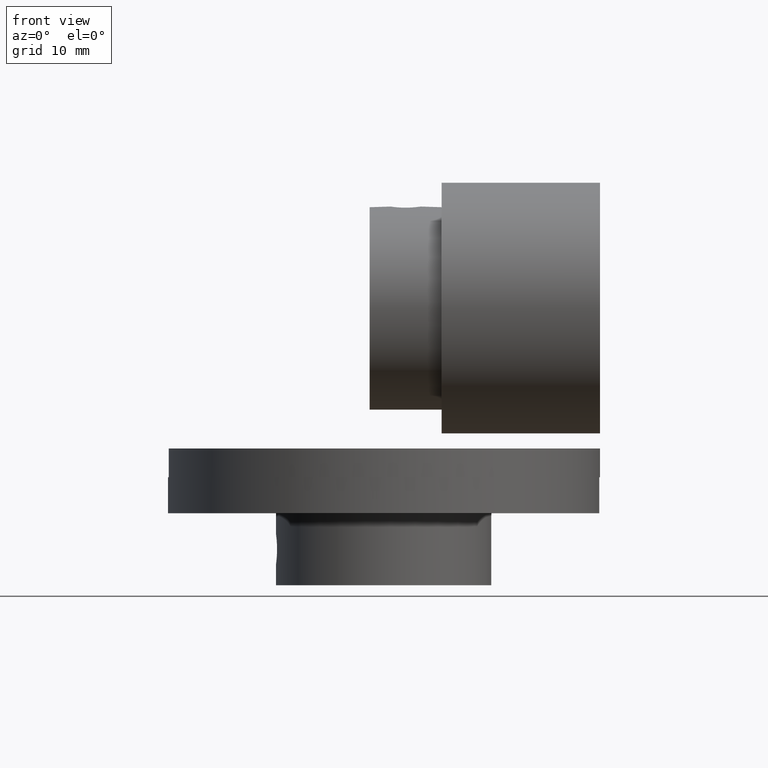
[diagram: clean part render]
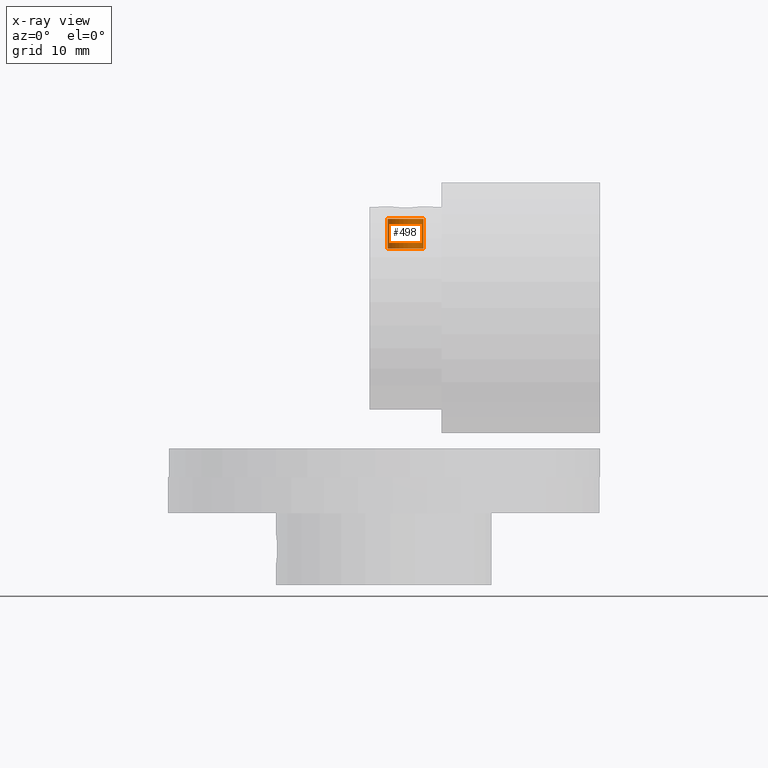
[diagram: x-ray — body ghosted, one internal face saturated and labeled with its STEP entity id]
A machine part, front view, then the same camera in x-ray: the body is ghosted and one INTERNAL B-rep face — a face not visible from any outside direction — is saturated and labeled: STEP entity #498.
In plain terms, the highlighted cylindrical surface (bore or boss wall) has radius 2.5 mm, axis along (0, 0, 1).
Its self-contained STEP definition (entity closure, byte-faithful):
#498 = ADVANCED_FACE( '', ( #634, #635 ), #636, .T. );
#634 = FACE_OUTER_BOUND( '', #818, .T. );
#635 = FACE_OUTER_BOUND( '', #819, .T. );
#636 = CYLINDRICAL_SURFACE( '', #820, 2.50000000000000 );
#818 = EDGE_LOOP( '', ( #1096 ) );
#819 = EDGE_LOOP( '', ( #1097 ) );
#820 = AXIS2_PLACEMENT_3D( '', #1098, #1099, #1100 );
#1096 = ORIENTED_EDGE( '', *, *, #1362, .T. );
#1097 = ORIENTED_EDGE( '', *, *, #1383, .F. );
#1098 = CARTESIAN_POINT( '', ( 3.00000000000000, 0.000000000000000, 53.0085571626475 ) );
#1099 = DIRECTION( '', ( 0.000000000000000, 2.44921270764475E-016, 1.00000000000000 ) );
#1100 = DIRECTION( '', ( -1.00000000000000, 0.000000000000000, 0.000000000000000 ) );
#1362 = EDGE_CURVE( '', #1506, #1506, #1507, .T. );
#1383 = EDGE_CURVE( '', #1540, #1540, #1541, .T. );
#1506 = VERTEX_POINT( '', #2154 );
#1507 = CIRCLE( '', #2155, 2.50000000000000 );
#1540 = VERTEX_POINT( '', #2230 );
#1541 = CIRCLE( '', #2231, 2.50000000000000 );
#2154 = CARTESIAN_POINT( '', ( 0.500000000000003, 0.000000000000000, 58.3835571626475 ) );
#2155 = AXIS2_PLACEMENT_3D( '', #2526, #2527, #2528 );
#2230 = CARTESIAN_POINT( '', ( 0.500000000000003, 0.000000000000000, 54.2585571626475 ) );
#2231 = AXIS2_PLACEMENT_3D( '', #2544, #2545, #2546 );
#2526 = CARTESIAN_POINT( '', ( 3.00000000000000, 0.000000000000000, 58.3835571626475 ) );
#2527 = DIRECTION( '', ( -0.000000000000000, -2.44921270764475E-016, -1.00000000000000 ) );
#2528 = DIRECTION( '', ( -1.00000000000000, 0.000000000000000, 0.000000000000000 ) );
#2544 = CARTESIAN_POINT( '', ( 3.00000000000000, 0.000000000000000, 54.2585571626475 ) );
#2545 = DIRECTION( '', ( -0.000000000000000, -2.44921270764475E-016, -1.00000000000000 ) );
#2546 = DIRECTION( '', ( -1.00000000000000, 0.000000000000000, 0.000000000000000 ) );